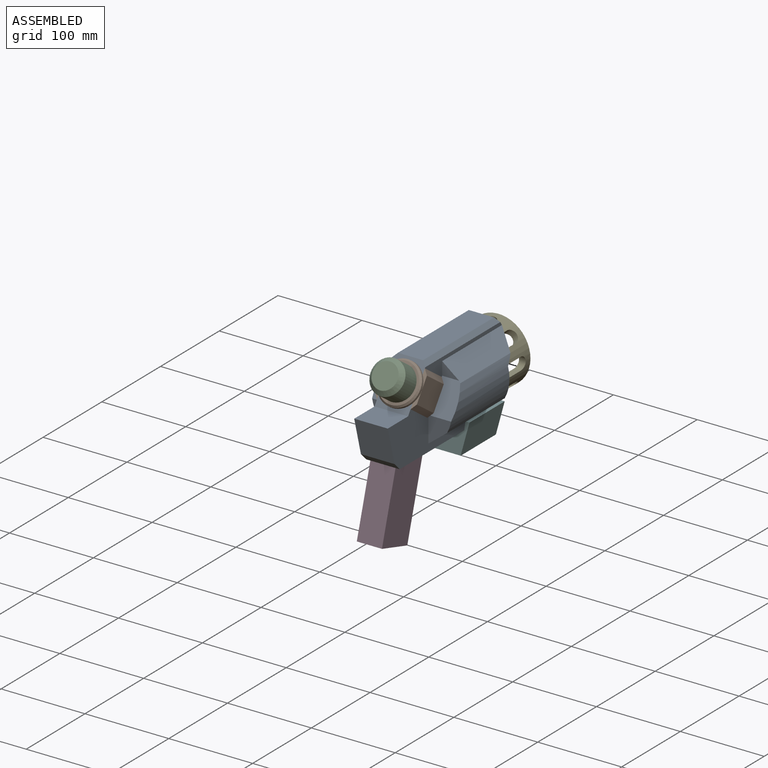
[diagram: assembled view]
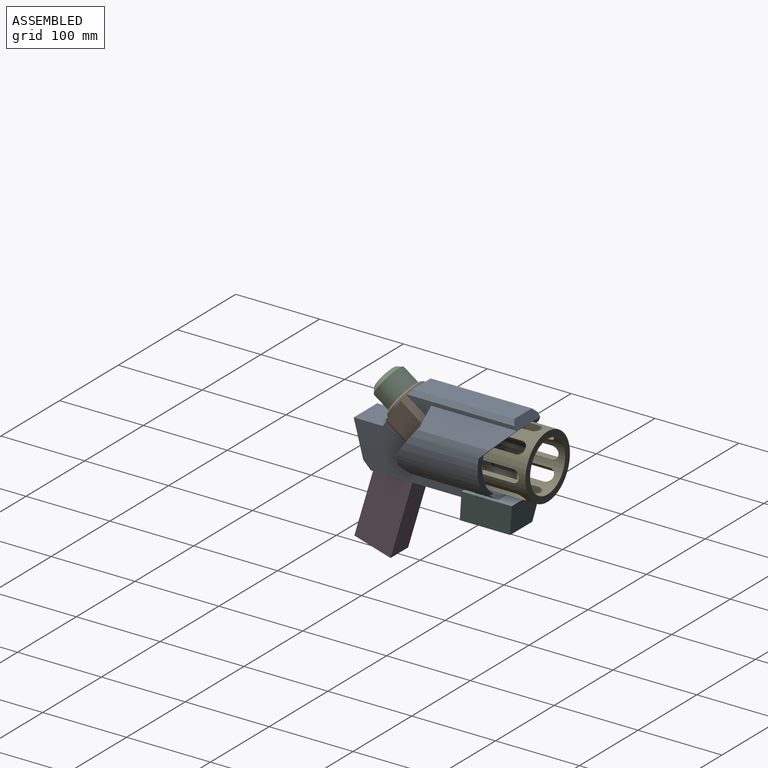
[diagram: assembled view, second angle]
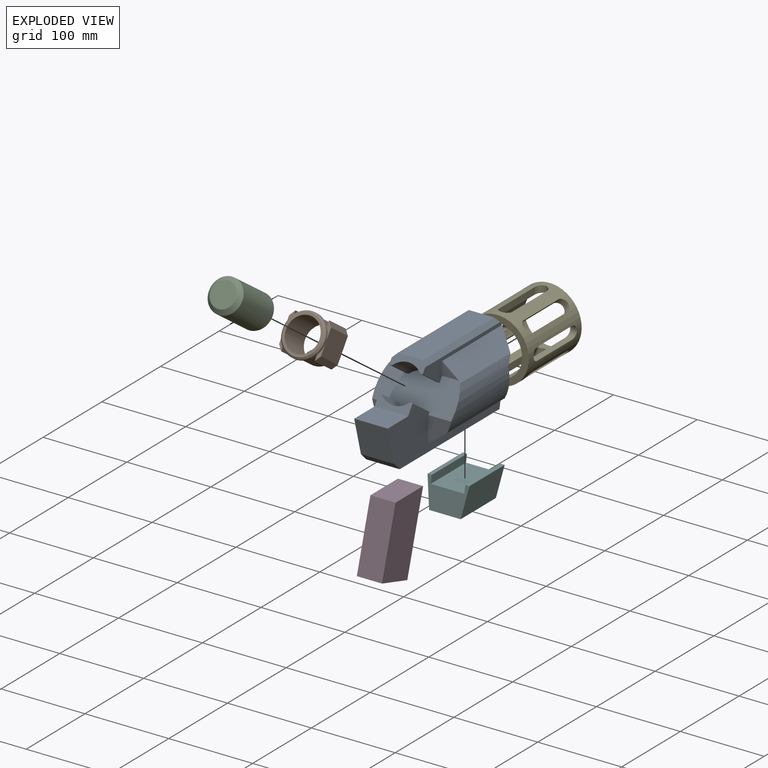
[diagram: exploded view]
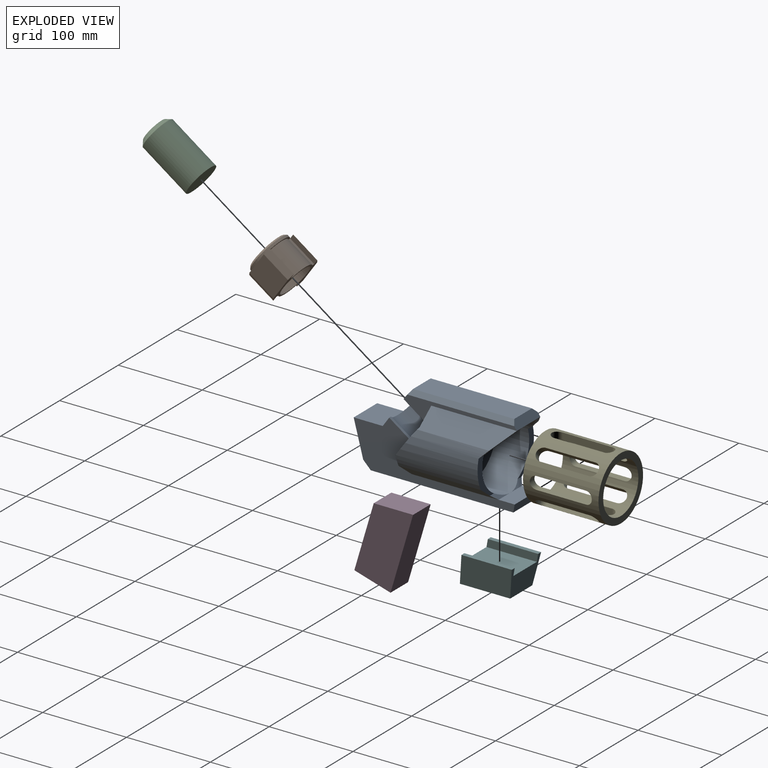
[diagram: exploded view, second angle]
ASSEMBLY  parts=6 mates=5
PART A: 41 faces, bbox 96x194.5x98.3 mm
  f0: plane 103.2x22.4mm, normal (0.62,0,0.79), area 2651.1mm2, adj f7,f10,f23,f36,f38
  f1: plane 103.2x22.4mm, normal (-0.62,0,0.79), area 2651.1mm2, adj f2,f12,f24,f36,f37
  f2: cylinder r=48mm len=107.88mm, axis (0,-1,0), area 4282.3mm2, adj f1,f3,f9,f12,f29,f36
  f3: plane 30.83x27.12mm, normal (0,-1,0), area 530.8mm2, adj f2,f6,f29,f36
  f4: plane 40x11.06mm, normal (0,-0.82,0.57), area 365.9mm2, adj f5,f6,f21,f33,f34,f35
  f5: plane 192x62.64mm, normal (1,0,0), area 4370.5mm2, adj f4,f11,f15,f16,f17,f21,f22,f25
  f6: plane 192x62.64mm, normal (-1,0,0), area 4370.5mm2, adj f3,f4,f15,f16,f17,f21,f22,f25
  f7: cylinder r=48mm len=107.88mm, axis (0,-1,0), area 4282.3mm2, adj f0,f10,f11,f13,f28,f36
  f8: plane 27.07x5.52mm, normal (0,0.71,0.71), area 76.6mm2, adj f9,f25,f26,f29
  f9: plane 47.3x27.72mm, normal (0,1,0), area 378.3mm2, adj f2,f8,f12,f26,f29
  f10: plane 46.26x27.18mm, normal (0,0.71,-0.71), area 317.2mm2, adj f0,f7,f13,f18,f26
  f11: plane 30.83x27.12mm, normal (0,-1,0), area 530.8mm2, adj f5,f7,f28,f36
  f12: plane 46.26x27.18mm, normal (0,0.71,-0.71), area 317.2mm2, adj f1,f2,f9,f18,f26
  f13: plane 47.3x27.72mm, normal (0,1,0), area 378.3mm2, adj f7,f10,f14,f26,f28
  f14: plane 27.07x5.52mm, normal (0,0.71,0.71), area 76.6mm2, adj f13,f25,f26,f28
  f15: plane 40x9mm, normal (0,-0.71,-0.71), area 509.1mm2, adj f5,f6,f16,f22
  f16: plane 170x40mm, normal (0,0,-1), area 6800mm2, adj f5,f6,f15,f17
  f17: plane 40x9mm, normal (0,0.98,-0.17), area 365.6mm2, adj f5,f6,f16,f25
  f18: plane 40x9.28mm, normal (0,0.82,0.57), area 422.4mm2, adj f10,f12,f19,f23,f24,f39,f40
  f19: plane 120.69x30mm, normal (0,0,1), area 3620.6mm2, adj f18,f20,f39,f40
  f20: plane 40x11.06mm, normal (0,-0.82,0.57), area 335.4mm2, adj f19,f23,f24,f30,f31,f32,f39,f40
  f21: plane 40x34.64mm, normal (0,0,1), area 1385.5mm2, adj f4,f5,f6,f22
  f22: plane 42.58x40mm, normal (0,-0.97,-0.26), area 1763.1mm2, adj f5,f6,f15,f21
  f23: plane 134.93x26.14mm, normal (1,0,0), area 977.4mm2, adj f0,f18,f20,f30,f36,f38,f40
  f24: plane 134.93x26.14mm, normal (-1,0,0), area 977.4mm2, adj f1,f18,f20,f32,f36,f37,f39
  f25: plane 40x19.14mm, normal (0,0,1), area 765.5mm2, adj f5,f6,f8,f14,f17
  f26: cylinder r=40mm len=80mm, axis (0,1,0), area 11963.7mm2, adj f8,f9,f10,f12,f13,f14,f27
  f27: plane 80x80mm, normal (0,1,0), area 5026.5mm2, adj f26
  f28: plane 103.72x22.4mm, normal (0.62,0,-0.79), area 2816.1mm2, adj f5,f7,f11,f13,f14
  f29: plane 103.72x22.4mm, normal (-0.62,0,-0.79), area 2816.1mm2, adj f2,f3,f6,f8,f9
  f30: plane 28.67x20.08mm, normal (0,-0.57,-0.82), area 113mm2, adj f20,f23,f31,f36
  f31: cylinder r=22.5mm len=33.54mm, axis (0,-0.82,0.57), area 1324.7mm2, adj f20,f30,f32,f36
  f32: plane 28.67x20.08mm, normal (0,-0.57,-0.82), area 113mm2, adj f20,f24,f31,f36
  f33: plane 28.67x20.08mm, normal (0,0.57,0.82), area 113mm2, adj f4,f6,f34,f36
  f34: cylinder r=22.5mm len=33.54mm, axis (0,-0.82,0.57), area 1324.7mm2, adj f4,f33,f35,f36
  f35: plane 28.67x20.08mm, normal (0,0.57,0.82), area 113mm2, adj f4,f5,f34,f36
  f36: plane 96x36.86mm, normal (0,-0.82,0.57), area 3699.7mm2, adj f0,f1,f2,f3,f5,f6,f7,f11
  f37: plane 20.12x15.72mm, normal (0,-1,0), area 158.1mm2, adj f1,f24,f36
  f38: plane 20.12x15.72mm, normal (0,-1,0), area 158.1mm2, adj f0,f23,f36
  f39: plane 127.69x5mm, normal (-0.71,0,0.71), area 878.1mm2, adj f18,f19,f20,f24
  f40: plane 127.69x5mm, normal (0.71,0,0.71), area 878.1mm2, adj f18,f19,f20,f23
PART B: 27 faces, bbox 50x50x40 mm
  f0: plane 35x3.23mm, normal (0,1,0), area 113mm2, adj f6,f13,f14,f26
  f1: plane 35x3.23mm, normal (0,-1,0), area 113mm2, adj f8,f13,f17,f21
  f2: plane 21.25x5mm, normal (0,0,1), area 39.5mm2, adj f7,f15,f25,f26
  f3: plane 21.25x5mm, normal (0,0,1), area 39.5mm2, adj f7,f15,f21,f22
  f4: plane 21.25x5mm, normal (0,0,1), area 39.5mm2, adj f11,f15,f23,f24
  f5: plane 35x3.23mm, normal (0,1,0), area 113mm2, adj f6,f13,f14,f23
  f6: cylinder r=22.5mm len=35mm, axis (0,0,-1), area 1324.7mm2, adj f0,f5,f13,f14
  f7: plane 35x30mm, normal (-1,0,0), area 1050mm2, adj f2,f3,f13,f22,f25
  f8: cylinder r=22.5mm len=35mm, axis (0,0,-1), area 1324.7mm2, adj f1,f9,f13,f17
  f9: plane 35x3.23mm, normal (0,-1,0), area 113mm2, adj f8,f13,f17,f20
  f10: cylinder r=20mm len=40mm, axis (0,0,-1), area 5026.5mm2, adj f13,f16
  f11: plane 35x30mm, normal (1,0,0), area 1050mm2, adj f4,f12,f13,f19,f24
  f12: plane 21.25x5mm, normal (0,0,1), area 39.5mm2, adj f11,f15,f19,f20
  f13: plane 50x45mm, normal (0,0,-1), area 654.3mm2, adj f0,f1,f5,f6,f7,f8,f9,f10
  f14: plane 40x10mm, normal (0,0,-1), area 105.3mm2, adj f0,f5,f6,f15
  f15: cylinder r=25mm len=50mm, axis (0,0,-1), area 471.2mm2, adj f2,f3,f4,f12,f14,f17,f18
  f16: plane 46x46mm, normal (0,0,1), area 405.3mm2, adj f10,f18
  f17: plane 40x10mm, normal (0,0,-1), area 105.3mm2, adj f1,f8,f9,f15
  f18: cone r=23mm half-angle=45deg, axis (0,0,-1), area 426.5mm2, adj f15,f16
  f19: plane 35x6.25mm, normal (0.78,-0.62,0), area 280mm2, adj f11,f12,f13,f20
  f20: plane 35x6.25mm, normal (-1,0,0), area 218.6mm2, adj f9,f12,f13,f19
  f21: plane 35x6.25mm, normal (1,0,0), area 218.6mm2, adj f1,f3,f13,f22
  f22: plane 35x6.25mm, normal (-0.78,-0.62,0), area 280mm2, adj f3,f7,f13,f21
  f23: plane 35x6.25mm, normal (-1,0,0), area 218.6mm2, adj f4,f5,f13,f24
  f24: plane 35x6.25mm, normal (0.78,0.62,0), area 280mm2, adj f4,f11,f13,f23
  f25: plane 35x6.25mm, normal (-0.78,0.62,0), area 280mm2, adj f2,f7,f13,f26
  f26: plane 35x6.25mm, normal (1,0,0), area 218.6mm2, adj f0,f2,f13,f25
PART C: 4 faces, bbox 40x40x68 mm
  f0: cylinder r=20mm len=63mm, axis (0,0,-1), area 7916.8mm2, adj f2,f3
  f1: plane 30x30mm, normal (0,0,1), area 706.9mm2, adj f3
  f2: plane 40x40mm, normal (0,0,-1), area 1256.6mm2, adj f0
  f3: cone r=15mm half-angle=45deg, axis (0,0,-1), area 777.5mm2, adj f0,f1
PART D: 6 faces, bbox 30x70.1x91.1 mm
  f0: plane 46.92x30mm, normal (0,0,1), area 1407.6mm2, adj f1,f3,f4,f5
  f1: plane 78.37x30mm, normal (0,-0.96,0.28), area 2451.5mm2, adj f0,f2,f4,f5
  f2: plane 43.16x30mm, normal (0,-0.28,-0.96), area 1350mm2, adj f1,f3,f4,f5
  f3: plane 91.11x30mm, normal (0,0.96,-0.28), area 2850mm2, adj f0,f2,f4,f5
  f4: plane 91.11x70.06mm, normal (1,0,0), area 3976.1mm2, adj f0,f1,f2,f3
  f5: plane 91.11x70.06mm, normal (-1,0,0), area 3976.1mm2, adj f0,f1,f2,f3
PART E: 36 faces, bbox 76x76x90 mm
  f0: plane 59x5.8mm, normal (-0.71,-0.71,0), area 484.1mm2, adj f1,f3,f28,f29
  f1: cylinder r=7.5mm len=16.94mm, axis (-0.71,0.71,0), area 190.9mm2, adj f0,f2,f28,f29
  f2: plane 59x5.8mm, normal (0.71,0.71,0), area 484.1mm2, adj f1,f3,f28,f29
  f3: cylinder r=7.5mm len=16.94mm, axis (-0.71,0.71,0), area 190.9mm2, adj f0,f2,f28,f29
  f4: plane 59x8.21mm, normal (-1,0,0), area 484.1mm2, adj f5,f7,f28,f29
  f5: cylinder r=7.5mm len=15mm, axis (0,1,0), area 190.9mm2, adj f4,f6,f28,f29
  f6: plane 59x8.21mm, normal (1,0,0), area 484.1mm2, adj f5,f7,f28,f29
  f7: cylinder r=7.5mm len=15mm, axis (0,1,0), area 190.9mm2, adj f4,f6,f28,f29
  f8: plane 59x5.8mm, normal (-0.71,0.71,0), area 484.1mm2, adj f9,f11,f28,f29
  f9: cylinder r=7.5mm len=16.94mm, axis (0.71,0.71,0), area 190.9mm2, adj f8,f10,f28,f29
  f10: plane 59x5.8mm, normal (0.71,-0.71,0), area 484.1mm2, adj f9,f11,f28,f29
  f11: cylinder r=7.5mm len=16.94mm, axis (0.71,0.71,0), area 190.9mm2, adj f8,f10,f28,f29
  f12: plane 59x8.21mm, normal (0,1,0), area 484.1mm2, adj f13,f15,f28,f29
  f13: cylinder r=7.5mm len=15mm, axis (1,0,0), area 190.9mm2, adj f12,f14,f28,f29
  f14: plane 59x8.21mm, normal (0,-1,0), area 484.1mm2, adj f13,f15,f28,f29
  f15: cylinder r=7.5mm len=15mm, axis (1,0,0), area 190.9mm2, adj f12,f14,f28,f29
  f16: plane 59x5.8mm, normal (0.71,0.71,0), area 484.1mm2, adj f17,f19,f28,f29
  f17: cylinder r=7.5mm len=16.94mm, axis (0.71,-0.71,0), area 190.9mm2, adj f16,f18,f28,f29
  f18: plane 59x5.8mm, normal (-0.71,-0.71,0), area 484.1mm2, adj f17,f19,f28,f29
  f19: cylinder r=7.5mm len=16.94mm, axis (0.71,-0.71,0), area 190.9mm2, adj f16,f18,f28,f29
  f20: plane 59x8.21mm, normal (1,0,0), area 484.1mm2, adj f21,f23,f28,f29
  f21: cylinder r=7.5mm len=15mm, axis (0,-1,0), area 190.9mm2, adj f20,f22,f28,f29
  f22: plane 59x8.21mm, normal (-1,0,0), area 484.1mm2, adj f21,f23,f28,f29
  f23: cylinder r=7.5mm len=15mm, axis (0,-1,0), area 190.9mm2, adj f20,f22,f28,f29
  f24: plane 59x5.8mm, normal (0.71,-0.71,0), area 484.1mm2, adj f25,f27,f28,f29
  f25: cylinder r=7.5mm len=16.94mm, axis (-0.71,-0.71,0), area 190.9mm2, adj f24,f26,f28,f29
  f26: plane 59x5.8mm, normal (-0.71,0.71,0), area 484.1mm2, adj f25,f27,f28,f29
  f27: cylinder r=7.5mm len=16.94mm, axis (-0.71,-0.71,0), area 190.9mm2, adj f24,f26,f28,f29
  f28: cylinder r=30mm len=90mm, axis (0,0,-1), area 8383.6mm2, adj f0,f1,f2,f3,f4,f5,f6,f7
  f29: cylinder r=38mm len=90mm, axis (0,0,-1), area 12941mm2, adj f0,f1,f2,f3,f4,f5,f6,f7
  f30: plane 76x76mm, normal (0,0,1), area 1709mm2, adj f28,f29
  f31: plane 76x76mm, normal (0,0,-1), area 1709mm2, adj f28,f29
  f32: plane 59x8.21mm, normal (0,-1,0), area 484.1mm2, adj f28,f29,f33,f35
  f33: cylinder r=7.5mm len=15mm, axis (-1,0,0), area 190.9mm2, adj f28,f29,f32,f34
  f34: plane 59x8.21mm, normal (0,1,0), area 484.1mm2, adj f28,f29,f33,f35
  f35: cylinder r=7.5mm len=15mm, axis (-1,0,0), area 190.9mm2, adj f28,f29,f32,f34
PART F: 10 faces, bbox 50x66.2x35 mm
  f0: plane 60x37.66mm, normal (0,0,-1), area 2259.4mm2, adj f2,f3,f8,f9
  f1: plane 60x5mm, normal (0,0,1), area 300mm2, adj f2,f3,f7,f9
  f2: plane 50x35mm, normal (0,-0.98,0.17), area 1192.1mm2, adj f0,f1,f4,f5,f6,f7,f8,f9
  f3: plane 50x35mm, normal (0,0.98,-0.17), area 1192.1mm2, adj f0,f1,f4,f5,f6,f7,f8,f9
  f4: plane 60x5mm, normal (0,0,1), area 300mm2, adj f2,f3,f5,f8
  f5: plane 61.59x9mm, normal (1,0,0), area 540mm2, adj f2,f3,f4,f6
  f6: plane 60x40mm, normal (0,0,1), area 2400mm2, adj f2,f3,f5,f7
  f7: plane 61.59x9mm, normal (-1,0,0), area 540mm2, adj f1,f2,f3,f6
  f8: plane 66.17x35mm, normal (-0.98,0,-0.17), area 2132.4mm2, adj f0,f2,f3,f4
  f9: plane 66.17x35mm, normal (0.98,0,-0.17), area 2132.4mm2, adj f0,f1,f2,f3
PLACE A t=(-28.37,-46.14,8.12)mm
PLACE B rot(axis=(1,0,0),55deg) t=(-28.37,-35.38,69.23)mm
PLACE C rot(axis=(1,0,0),55deg) t=(-28.37,-35.38,69.23)mm
PLACE D t=(-28.37,-64.03,-16.56)mm
PLACE E rot(axis=(-1,0,0),90deg) t=(-28.37,57.3,63.38)mm
PLACE F t=(-28.37,29.21,7.08)mm
MATE fastened E.f28 <-> A.f26  axis (0,-1,0) through (-28.37,12.3,63.38)mm
MATE fastened B.f8 <-> A.f31  axis (0,0.82,-0.57) through (-28.37,-35.38,69.23)mm
MATE fastened F.f6 <-> A.f16  axis (0,0,1) through (-28.37,75.37,14.38)mm
MATE fastened D.f0 <-> A.f16  axis (0,0,1) through (-28.37,-94.63,14.38)mm
MATE fastened C.f0 <-> A.f31  axis (0,0.82,-0.57) through (-28.37,-35.38,69.23)mm
